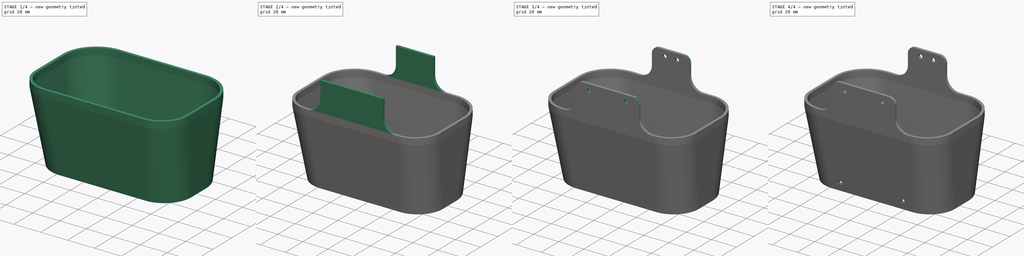
[diagram: build sequence overview — one tinted view per stage of 4, left to right]
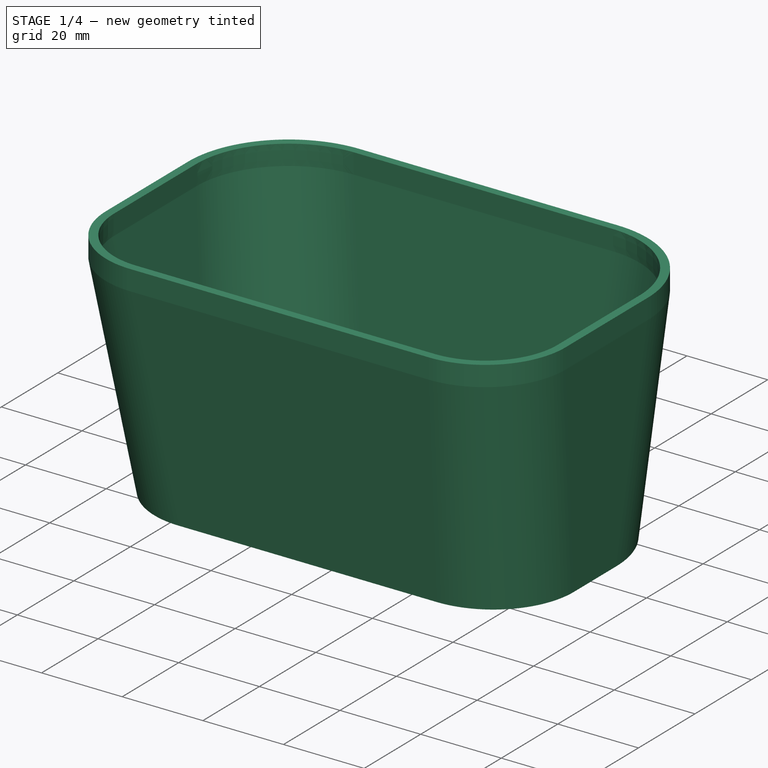
[diagram: stage 1 of 4 — iso view after this stage's code; geometry added in this stage tinted green]
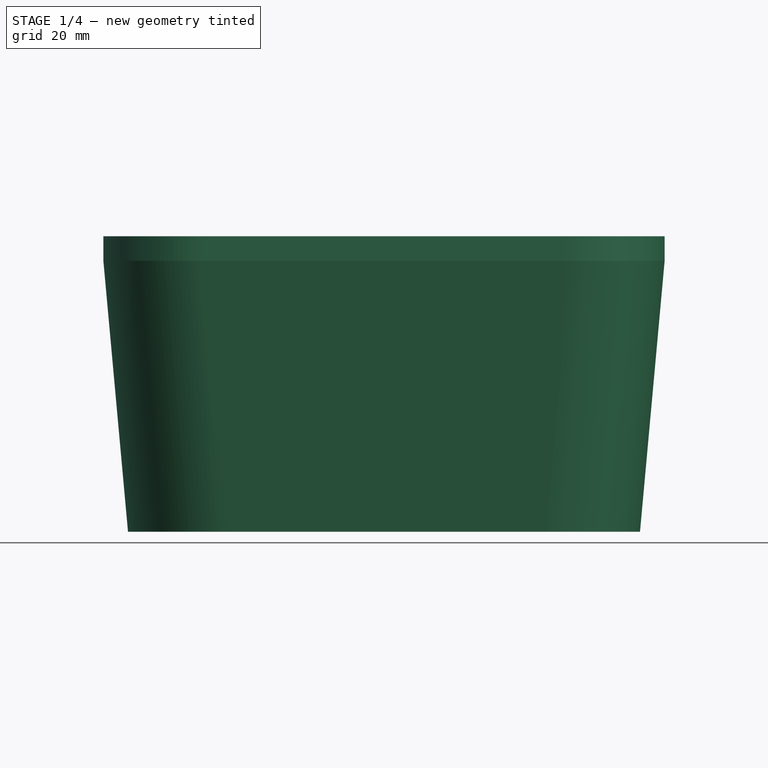
[diagram: stage 1 of 4 — front view after this stage's code; geometry added in this stage tinted green]
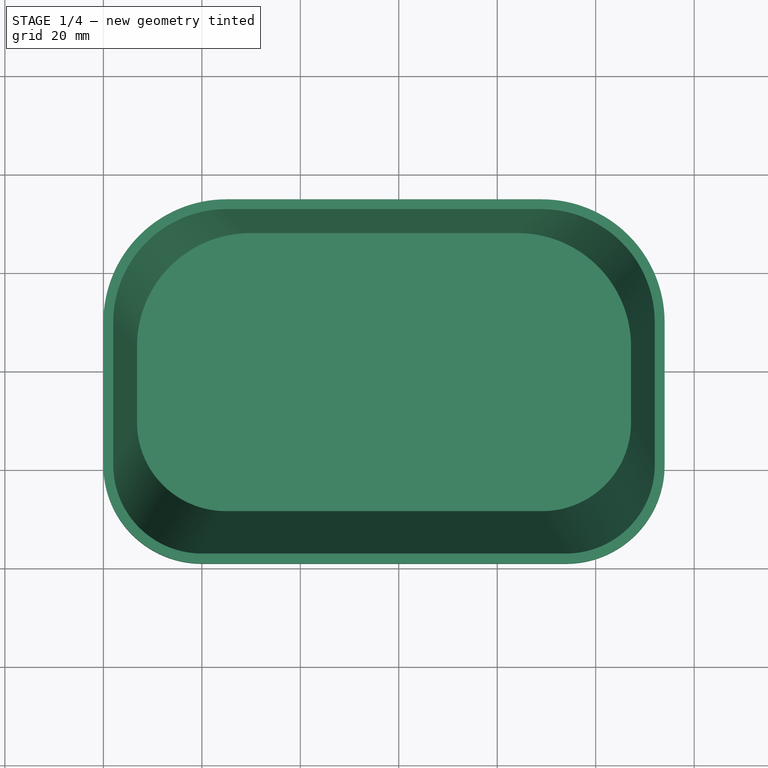
[diagram: stage 1 of 4 — top view after this stage's code; geometry added in this stage tinted green]
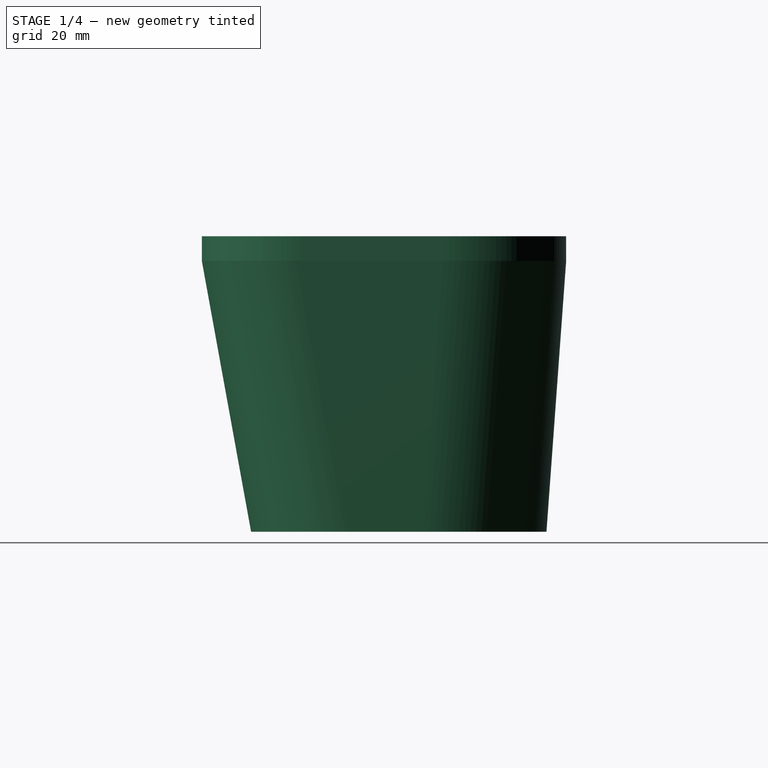
[diagram: stage 1 of 4 — right view after this stage's code; geometry added in this stage tinted green]
FCSTD DOCUMENT  (FreeCAD 0.19R22894 (Git))
Label: Rear_Cover_Shell_Long
License: CreativeCommons Attribution-NonCommercial
LicenseURL: http://creativecommons.org/licenses/by-nc/4.0/
objects: Sketcher::SketchObject×8, PartDesign::Pocket×7, PartDesign::Pad×2, PartDesign::AdditiveLoft×1, PartDesign::Thickness×1, PartDesign::Fillet×1, PartDesign::Body×1
note: 33 computed .brp shape members not serialized (recipe doc carries the construction recipe); baked Part::Feature solids carry a one-line shape summary decoded from their .brp

FEATURE [Sketcher::SketchObject] Sketch250
  MapMode = 5
  Support = -> [XY_Plane097]
  sketch-geometry (8):
    g0: LineSegment StartX=25 StartY=10 StartZ=0 EndX=89 EndY=10 EndZ=0
    g1: LineSegment StartX=109 StartY=30 StartZ=0 EndX=109 EndY=45 EndZ=0
    g2: LineSegment StartX=84 StartY=70 StartZ=0 EndX=30 EndY=70 EndZ=0
    g3: LineSegment StartX=5 StartY=45 StartZ=0 EndX=5 EndY=30 EndZ=0
    g4: ArcOfCircle CenterX=30 CenterY=45 CenterZ=0 NormalX=0 NormalY=0 NormalZ=1 AngleXU=0 Radius=25 StartAngle=1.5708 EndAngle=3.14159
    g5: ArcOfCircle CenterX=84 CenterY=45 CenterZ=0 NormalX=0 NormalY=0 NormalZ=1 AngleXU=0 Radius=25 StartAngle=0 EndAngle=1.5708
    g6: ArcOfCircle CenterX=89 CenterY=30 CenterZ=0 NormalX=0 NormalY=0 NormalZ=1 AngleXU=0 Radius=20 StartAngle=4.71239 EndAngle=6.28319
    g7: ArcOfCircle CenterX=25 CenterY=30 CenterZ=0 NormalX=0 NormalY=0 NormalZ=1 AngleXU=0 Radius=20 StartAngle=3.14159 EndAngle=4.71239
  constraints (20):
    c: Horizontal(g0)
    c: Horizontal(g2)
    c: Vertical(g1)
    c: Vertical(g3)
    c: Tangent(g3,g4) = -1.5708
    c: Tangent(g2,g4) = -1.5708
    c: Tangent(g2,g5) = -1.5708
    c: Tangent(g1,g5) = -1.5708
    c: Tangent(g1,g6) = -1.5708
    c: Tangent(g0,g6) = -1.5708
    c: Tangent(g0,g7) = -1.5708
    c: Tangent(g3,g7) = -1.5708
    c: Equal(g4,g5)
    c: Equal(g7,g6)
    c: Radius(g5) = 25
    c: Radius(g6) = 20
    c: DistanceY(g0,g2) = 60
    c: DistanceX(g3,g1) = 104
    c: DistanceY(g-1,g0) = 10
    c: DistanceX(g-1,g3) = 5
FEATURE [Sketcher::SketchObject] Sketch248
  AttachmentOffset = pos=(0,0,55) rot=(0,0,1;0rad)
  MapMode = 5
  Placement = pos=(0,0,55) rot=(0,0,1;0rad)
  Support = -> [XY_Plane097]
  sketch-geometry (8):
    g0: LineSegment StartX=25 StartY=74 StartZ=0 EndX=89 EndY=74 EndZ=0
    g1: LineSegment StartX=114 StartY=49 StartZ=0 EndX=114 EndY=20 EndZ=0
    g2: LineSegment StartX=94 StartY=0 StartZ=0 EndX=20 EndY=0 EndZ=0
    g3: LineSegment StartX=0 StartY=20 StartZ=0 EndX=0 EndY=49 EndZ=0
    g4: ArcOfCircle CenterX=20 CenterY=20 CenterZ=0 NormalX=0 NormalY=0 NormalZ=1 AngleXU=0 Radius=20 StartAngle=3.14159 EndAngle=4.71239
    g5: ArcOfCircle CenterX=25 CenterY=49 CenterZ=0 NormalX=0 NormalY=0 NormalZ=1 AngleXU=0 Radius=25 StartAngle=1.5708 EndAngle=3.14159
    g6: ArcOfCircle CenterX=89 CenterY=49 CenterZ=0 NormalX=0 NormalY=0 NormalZ=1 AngleXU=0 Radius=25 StartAngle=0 EndAngle=1.5708
    g7: ArcOfCircle CenterX=94 CenterY=20 CenterZ=0 NormalX=0 NormalY=0 NormalZ=1 AngleXU=0 Radius=20 StartAngle=4.71239 EndAngle=6.28319
  constraints (20):
    c: Horizontal(g0)
    c: Horizontal(g2)
    c: Vertical(g1)
    c: Vertical(g3)
    c: Tangent(g2,g4) = 1.5708
    c: Tangent(g3,g4) = 1.5708
    c: Tangent(g3,g5) = 1.5708
    c: Tangent(g0,g5) = 1.5708
    c: Tangent(g0,g6) = 1.5708
    c: Tangent(g1,g6) = 1.5708
    c: Tangent(g1,g7) = 1.5708
    c: Tangent(g2,g7) = 1.5708
    c: Equal(g4,g7)
    c: Equal(g5,g6)
    c: Radius(g6) = 25
    c: Radius(g7) = 20
    c: PointOnObject(g2,g-1)
    c: PointOnObject(g3,g-2)
    c: DistanceX(g3,g1) = 114
    c: DistanceY(g2,g0) = 74
FEATURE [PartDesign::AdditiveLoft] AdditiveLoft004  label="Baseplate"
  AllowMultiFace = false
  Closed = false
  Profile = -> Sketch250
  Ruled = false
  Sections = -> [Sketch248]
FEATURE [PartDesign::Thickness] Thickness004  label="Make Shell"
  Base = -> AdditiveLoft004 [Face3]
  BaseFeature = -> AdditiveLoft004
  Intersection = false
  Join = 0
  Mode = 0
  Reversed = true
  SupportTransform = false
  Value = 2
FEATURE [PartDesign::Pad] Pad108  label="Connection Ring"
  AllowMultiFace = false
  BaseFeature = -> Thickness004
  Direction = (1,1,1)
  Length = 5
  Length2 = 100
  Profile = -> Thickness004 [Face10]
  Type = 0
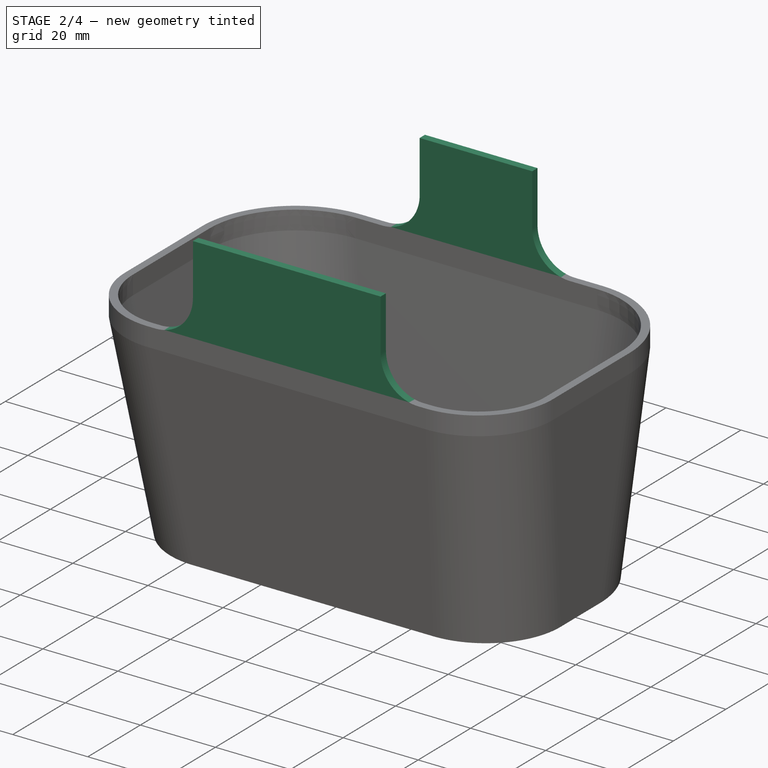
[diagram: stage 2 of 4 — iso view after this stage's code; geometry added in this stage tinted green]
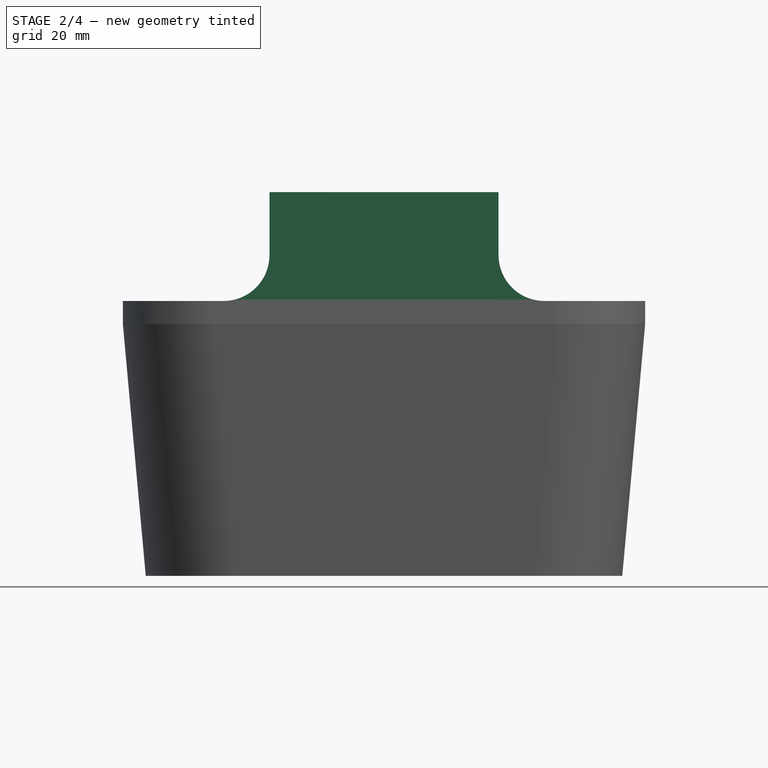
[diagram: stage 2 of 4 — front view after this stage's code; geometry added in this stage tinted green]
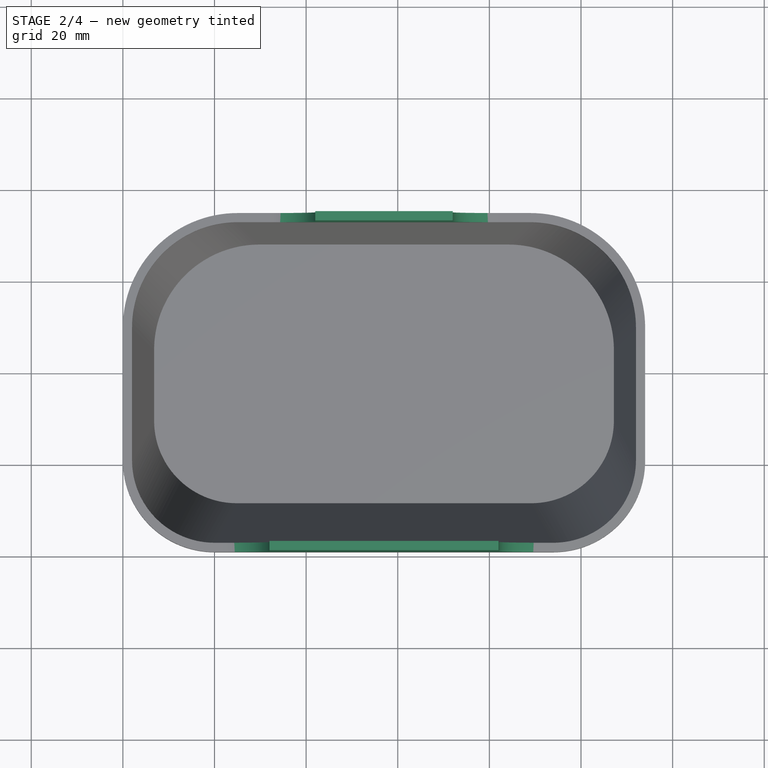
[diagram: stage 2 of 4 — top view after this stage's code; geometry added in this stage tinted green]
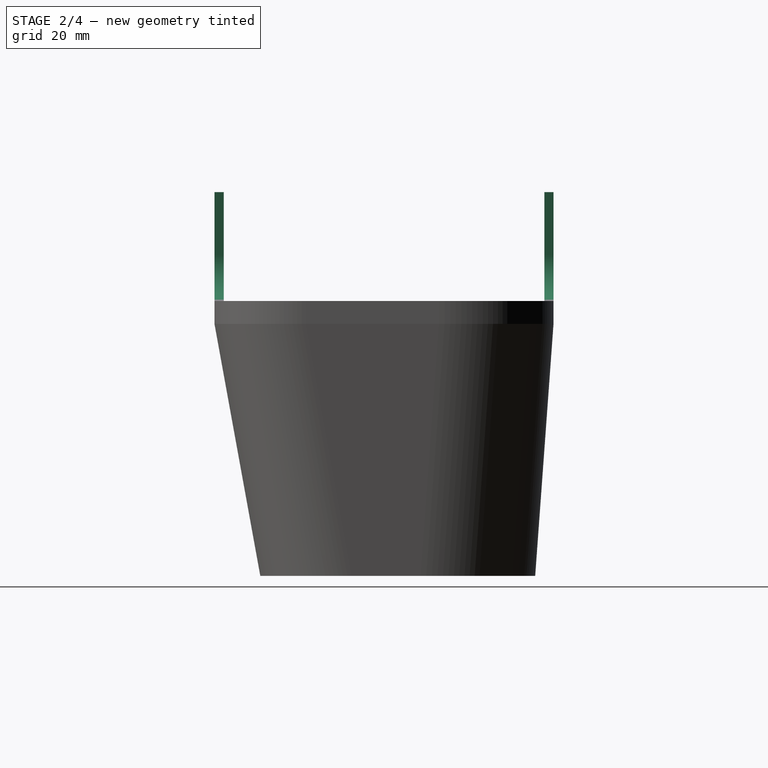
[diagram: stage 2 of 4 — right view after this stage's code; geometry added in this stage tinted green]
FEATURE [PartDesign::Pad] Pad111  label="Mounting Lip"
  AllowMultiFace = false
  BaseFeature = -> Pad108
  Direction = (1,1,1)
  Length = 23.75
  Length2 = 100
  Profile = -> Pad108 [Face18]
  Type = 0
FEATURE [Sketcher::SketchObject] Sketch253
  MapMode = 5
  Placement = pos=(0,0,0) rot=(1,0,0;1.5708rad)
  Support = -> [Pad111]
  sketch-geometry (10):
    g0: LineSegment StartX=0 StartY=83.75 StartZ=0 EndX=32 EndY=83.75 EndZ=0
    g1: LineSegment StartX=32 StartY=83.75 StartZ=0 EndX=32 EndY=70 EndZ=0
    g2: LineSegment StartX=22 StartY=60 StartZ=0 EndX=0 EndY=60 EndZ=0
    g3: LineSegment StartX=0 StartY=60 StartZ=0 EndX=0 EndY=83.75 EndZ=0
    g4: LineSegment StartX=114 StartY=83.75 StartZ=0 EndX=82 EndY=83.75 EndZ=0
    g5: LineSegment StartX=82 StartY=83.75 StartZ=0 EndX=82 EndY=70 EndZ=0
    g6: LineSegment StartX=92 StartY=60 StartZ=0 EndX=114 EndY=60 EndZ=0
    g7: LineSegment StartX=114 StartY=60 StartZ=0 EndX=114 EndY=83.75 EndZ=0
    g8: ArcOfCircle CenterX=22 CenterY=70 CenterZ=0 NormalX=0 NormalY=0 NormalZ=1 AngleXU=0 Radius=10 StartAngle=4.71239 EndAngle=6.28319
    g9: ArcOfCircle CenterX=92 CenterY=70 CenterZ=0 NormalX=0 NormalY=0 NormalZ=1 AngleXU=0 Radius=10 StartAngle=3.14159 EndAngle=4.71239
  constraints (28):
    c: Coincident(g0,g1)
    c: Coincident(g2,g3)
    c: Coincident(g3,g0)
    c: Horizontal(g0)
    c: Horizontal(g2)
    c: Vertical(g1)
    c: Vertical(g3)
    c: PointOnObject(g0,g-2)
    c: Coincident(g4,g5)
    c: Coincident(g6,g7)
    c: Coincident(g7,g4)
    c: Horizontal(g4)
    c: Horizontal(g6)
    c: Vertical(g5)
    c: Vertical(g7)
    c: DistanceX(g0,g4) = 50
    c: Tangent(g2,g8) = 1.5708
    c: Tangent(g1,g8) = 1.5708
    c: Tangent(g6,g9) = -1.5708
    c: Tangent(g5,g9) = -1.5708
    c: Equal(g8,g9)
    c: Radius(g8) = 10
    c: Equal(g0,g4)
    c: DistanceX(g0,g4) = 114
    c: DistanceY(g-1,g0) = 83.75
    c: Horizontal(g4,g0)
    c: Equal(g5,g1)
    c: DistanceY(g3,g3) = 23.75
FEATURE [PartDesign::Pocket] Pocket109  label="Remove Upper Shell"
  AllowMultiFace = false
  BaseFeature = -> Pad111
  Length = 40
  Length2 = 100
  Profile = -> Sketch253
  Type = 0
FEATURE [Sketcher::SketchObject] Sketch207
  MapMode = 5
  Placement = pos=(0,74,0) rot=(0,0.707107,0.707107;3.14159rad)
  Support = -> [Pocket109]
  sketch-geometry (10):
    g0: LineSegment StartX=-114 StartY=83.75 StartZ=0 EndX=-72 EndY=83.75 EndZ=0
    g1: LineSegment StartX=-72 StartY=83.75 StartZ=0 EndX=-72 EndY=70 EndZ=0
    g2: LineSegment StartX=-82 StartY=60 StartZ=0 EndX=-114 EndY=60 EndZ=0
    g3: LineSegment StartX=-114 StartY=60 StartZ=0 EndX=-114 EndY=83.75 EndZ=0
    g4: LineSegment StartX=0 StartY=83.75 StartZ=0 EndX=-42 EndY=83.75 EndZ=0
    g5: LineSegment StartX=-42 StartY=83.75 StartZ=0 EndX=-42 EndY=70 EndZ=0
    g6: LineSegment StartX=-32 StartY=60 StartZ=0 EndX=0 EndY=60 EndZ=0
    g7: LineSegment StartX=0 StartY=60 StartZ=0 EndX=0 EndY=83.75 EndZ=0
    g8: ArcOfCircle CenterX=-82 CenterY=70 CenterZ=0 NormalX=0 NormalY=0 NormalZ=1 AngleXU=0 Radius=10 StartAngle=4.71239 EndAngle=6.28319
    g9: ArcOfCircle CenterX=-32 CenterY=70 CenterZ=0 NormalX=0 NormalY=0 NormalZ=1 AngleXU=0 Radius=10 StartAngle=3.14159 EndAngle=4.71239
  constraints (28):
    c: Coincident(g0,g1)
    c: Coincident(g2,g3)
    c: Coincident(g3,g0)
    c: Horizontal(g0)
    c: Horizontal(g2)
    c: Vertical(g1)
    c: Vertical(g3)
    c: Coincident(g4,g5)
    c: Coincident(g6,g7)
    c: Coincident(g7,g4)
    c: Horizontal(g4)
    c: Horizontal(g6)
    c: Vertical(g5)
    c: Vertical(g7)
    c: PointOnObject(g4,g-2)
    c: DistanceX(g0,g4) = 30
    c: Tangent(g2,g8) = 1.5708
    c: Tangent(g1,g8) = 1.5708
    c: Tangent(g5,g9) = -1.5708
    c: Tangent(g6,g9) = -1.5708
    c: Equal(g9,g8)
    c: Radius(g9) = 10
    c: Horizontal(g4,g0)
    c: Equal(g1,g5)
    c: Equal(g4,g0)
    c: DistanceX(g0,g4) = 114
    c: DistanceY(g-1,g4) = 83.75
    c: DistanceY(g7,g7) = 23.75
FEATURE [PartDesign::Pocket] Pocket110  label="Remove Bottom Shell"
  AllowMultiFace = false
  BaseFeature = -> Pocket109
  Length = 40
  Length2 = 100
  Profile = -> Sketch207
  Type = 0
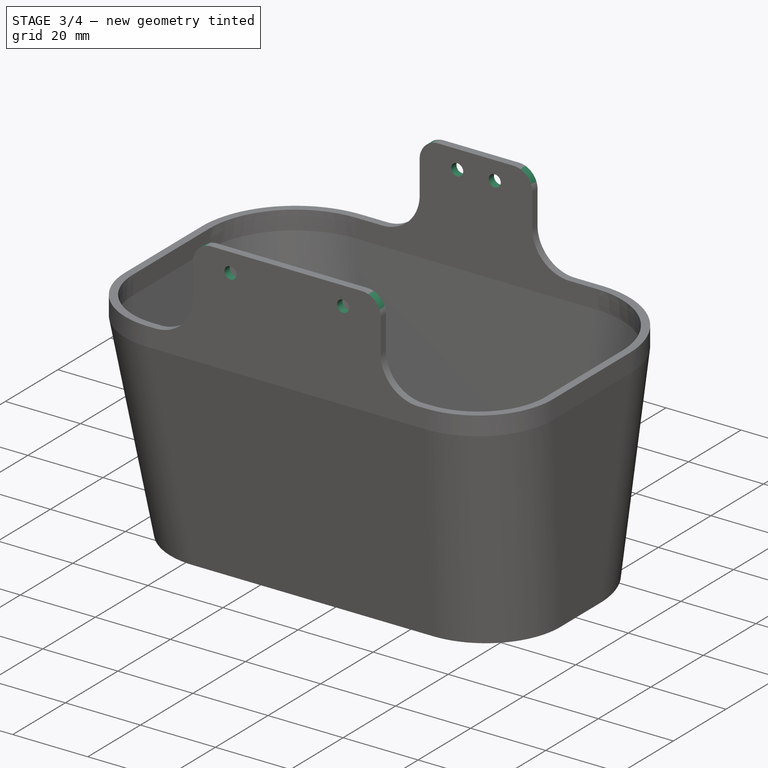
[diagram: stage 3 of 4 — iso view after this stage's code; geometry added in this stage tinted green]
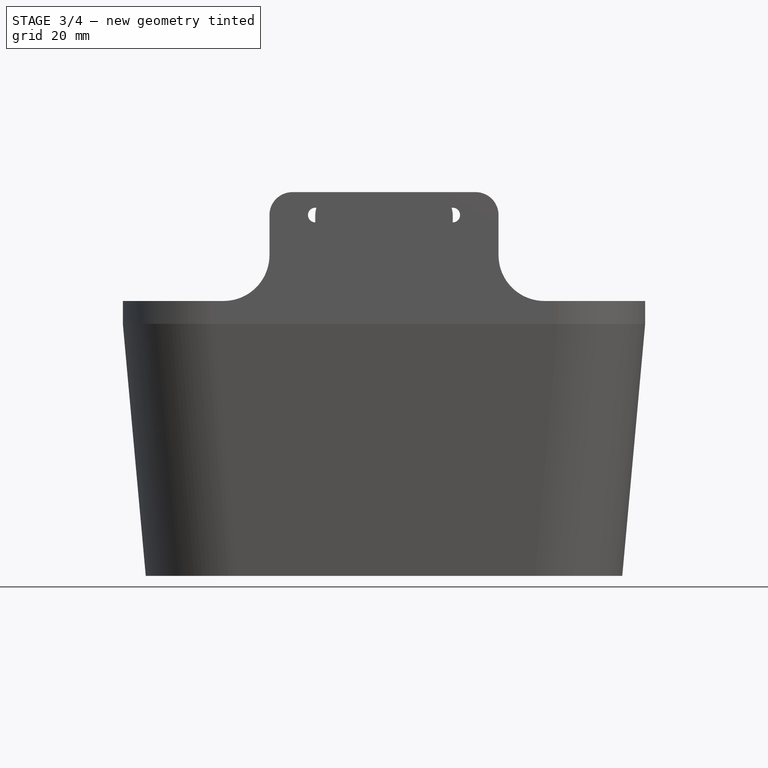
[diagram: stage 3 of 4 — front view after this stage's code; geometry added in this stage tinted green]
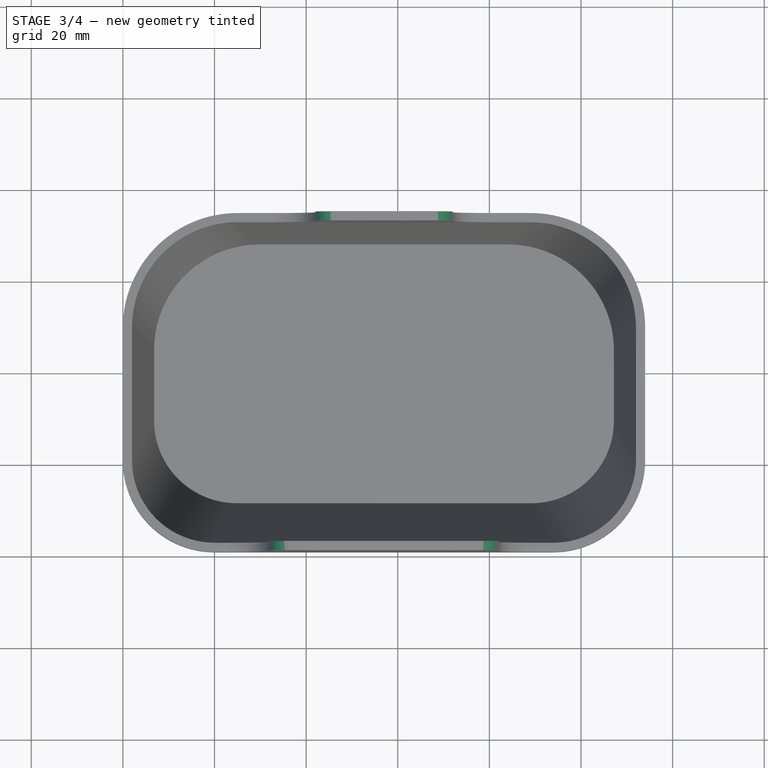
[diagram: stage 3 of 4 — top view after this stage's code; geometry added in this stage tinted green]
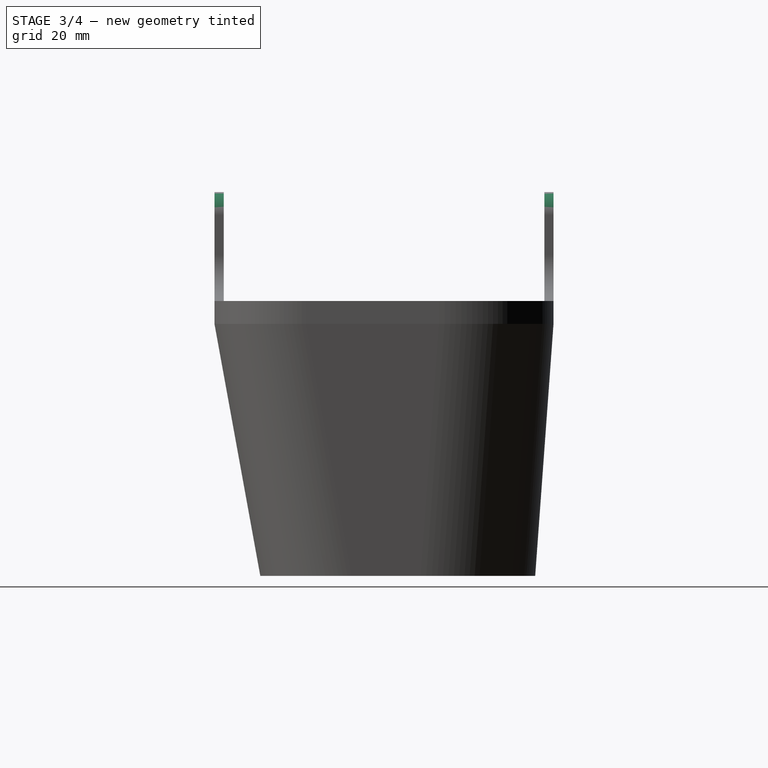
[diagram: stage 3 of 4 — right view after this stage's code; geometry added in this stage tinted green]
FEATURE [PartDesign::Fillet] Fillet024  label="Round Shell Corners"
  Base = -> Pocket110 [Edge94,Edge114,Edge113,Edge95]
  BaseFeature = -> Pocket110
  Radius = 5
  SupportTransform = false
FEATURE [Sketcher::SketchObject] Sketch249
  MapMode = 5
  Placement = pos=(0,74,0) rot=(0,0.707107,0.707107;3.14159rad)
  Support = -> [Fillet024]
  sketch-geometry (2):
    g0: Circle CenterX=-62 CenterY=78.75 CenterZ=0 NormalX=0 NormalY=0 NormalZ=1 AngleXU=0 Radius=1.6
    g1: Circle CenterX=-52 CenterY=78.75 CenterZ=0 NormalX=0 NormalY=0 NormalZ=1 AngleXU=0 Radius=1.6
  constraints (6):
    c: DistanceX(g0,g1) = 10
    c: Horizontal(g0,g1)
    c: DistanceY(g-1,g1) = 78.75
    c: DistanceX(g1,g-1) = 52
    c: Equal(g1,g0)
    c: Radius(g1) = 1.6
FEATURE [PartDesign::Pocket] Pocket113  label="Bottom Screwholes"
  AllowMultiFace = false
  BaseFeature = -> Fillet024
  Length = 5
  Length2 = 100
  Profile = -> Sketch249
  Type = 0
FEATURE [Sketcher::SketchObject] Sketch247
  MapMode = 5
  Placement = pos=(0,0,0) rot=(1,0,0;1.5708rad)
  Support = -> [Pocket113]
  sketch-geometry (2):
    g0: Circle CenterX=42 CenterY=78.75 CenterZ=0 NormalX=0 NormalY=0 NormalZ=1 AngleXU=0 Radius=1.6
    g1: Circle CenterX=72 CenterY=78.75 CenterZ=0 NormalX=0 NormalY=0 NormalZ=1 AngleXU=0 Radius=1.6
  constraints (6):
    c: DistanceX(g0,g1) = 30
    c: Horizontal(g1,g0)
    c: Equal(g0,g1)
    c: Radius(g1) = 1.6
    c: DistanceY(g-1,g0) = 78.75
    c: DistanceX(g-1,g0) = 42
FEATURE [PartDesign::Pocket] Pocket114  label="Top Screwholes"
  AllowMultiFace = false
  BaseFeature = -> Pocket113
  Length = 5
  Length2 = 100
  Profile = -> Sketch247
  Type = 0
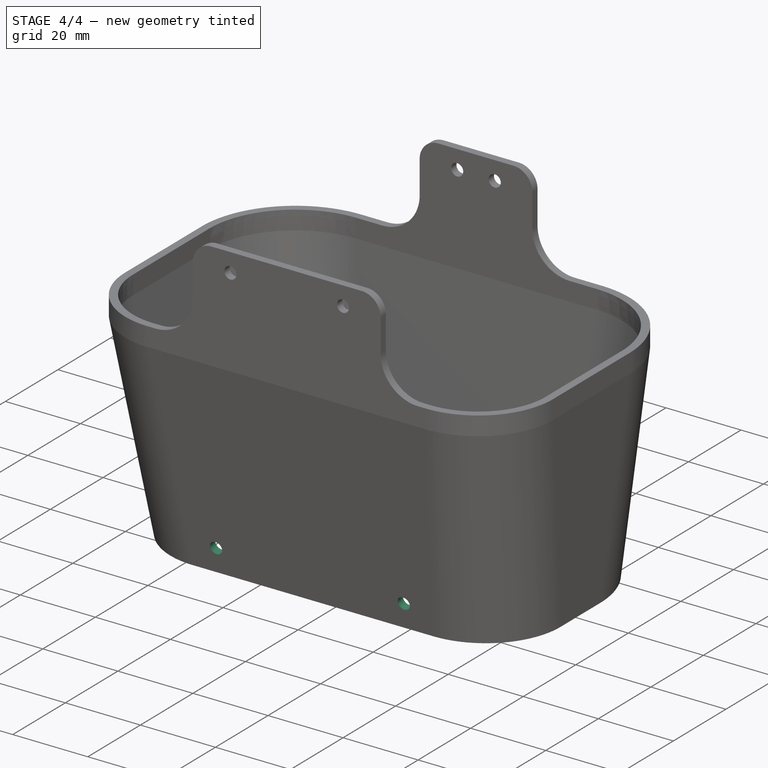
[diagram: stage 4 of 4 — iso view after this stage's code; geometry added in this stage tinted green]
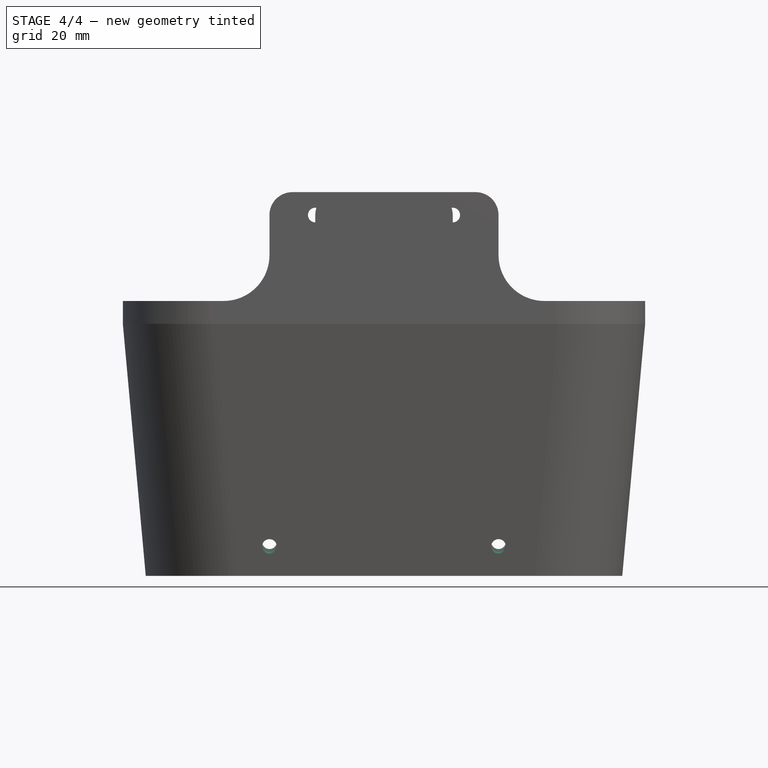
[diagram: stage 4 of 4 — front view after this stage's code; geometry added in this stage tinted green]
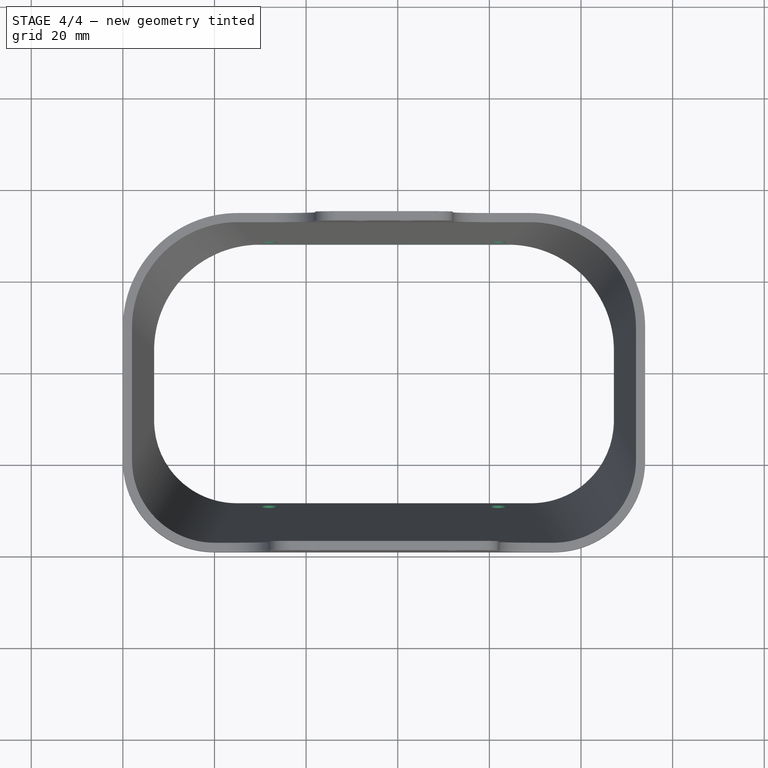
[diagram: stage 4 of 4 — top view after this stage's code; geometry added in this stage tinted green]
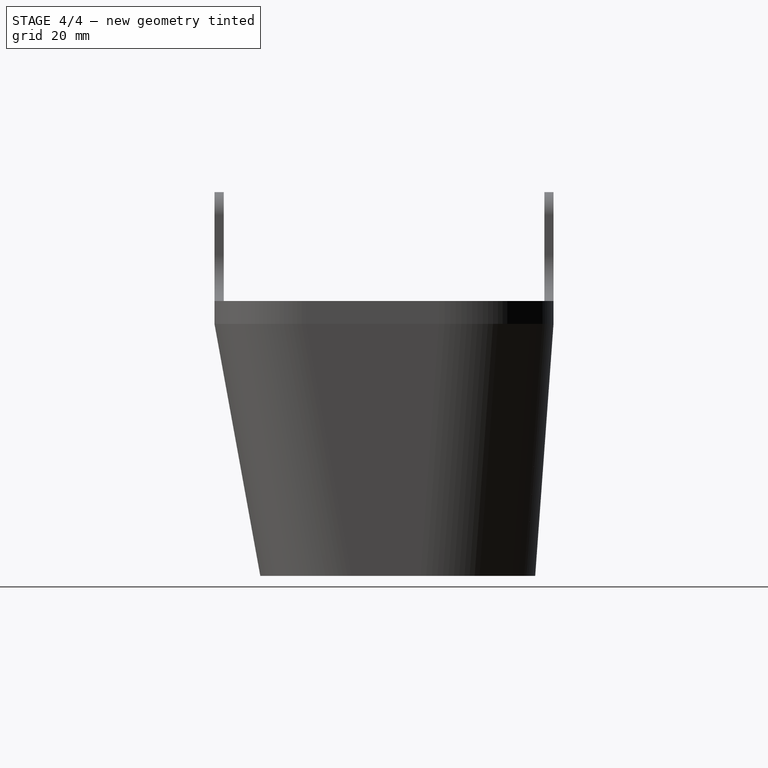
[diagram: stage 4 of 4 — right view after this stage's code; geometry added in this stage tinted green]
FEATURE [PartDesign::Pocket] Pocket081  label="Remove Bottom Plate"
  AllowMultiFace = false
  BaseFeature = -> Pocket114
  Length = 5
  Length2 = 100
  Profile = -> Pocket114 [Face46]
  Type = 0
FEATURE [Sketcher::SketchObject] Sketch225
  MapMode = 5
  Placement = pos=(0,9.68,1.76) rot=(1,0,0;1.75065rad)
  Support = -> [Pocket081]
  sketch-geometry (2):
    g0: Circle CenterX=32 CenterY=4.75 CenterZ=0 NormalX=0 NormalY=0 NormalZ=1 AngleXU=0 Radius=1.6
    g1: Circle CenterX=82 CenterY=4.75 CenterZ=0 NormalX=0 NormalY=0 NormalZ=1 AngleXU=0 Radius=1.6
  constraints (6):
    c: DistanceX(g0,g1) = 50
    c: Radius(g0) = 1.6
    c: Equal(g0,g1)
    c: Horizontal(g0,g1)
    c: DistanceY(g-1,g0) = 4.75
    c: DistanceX(g-1,g0) = 32
FEATURE [PartDesign::Pocket] Pocket082  label="Plate Top Screwholes"
  AllowMultiFace = false
  BaseFeature = -> Pocket081
  Length = 5
  Length2 = 100
  Profile = -> Sketch225
  Type = 0
FEATURE [Sketcher::SketchObject] Sketch224
  MapMode = 5
  Placement = pos=(-1e-16,69.6317,-5.06412) rot=(0,0.732303,0.680979;3.14159rad)
  Support = -> [Pocket082]
  sketch-geometry (2):
    g0: Circle CenterX=-82 CenterY=12.4 CenterZ=0 NormalX=0 NormalY=0 NormalZ=1 AngleXU=0 Radius=1.6
    g1: Circle CenterX=-32 CenterY=12.4 CenterZ=0 NormalX=0 NormalY=0 NormalZ=1 AngleXU=0 Radius=1.6
  constraints (6):
    c: DistanceX(g0,g1) = 50
    c: Radius(g1) = 1.6
    c: Equal(g1,g0)
    c: DistanceX(g1,g-1) = 32
    c: Horizontal(g1,g0)
    c: DistanceY(g-1,g1) = 12.4
FEATURE [PartDesign::Pocket] Pocket083  label="Plate Bottom Screwholes"
  AllowMultiFace = false
  BaseFeature = -> Pocket082
  Length = 5
  Length2 = 100
  Profile = -> Sketch224
  Type = 0
FEATURE [PartDesign::Body] Body082  label="Rear_Cover_Shell_long"
  Group = -> [Sketch248,Sketch250,AdditiveLoft004,Thickness004,Pad108,Pad111,Sketch253,Pocket109,Sketch207,Pocket110,Fillet024,Sketch249,Pocket113,Sketch247,Pocket114,Pocket081,Sketch225,Pocket082,Sketch224,Pocket083]
  Origin = -> Origin127
  Tip = -> Pocket083
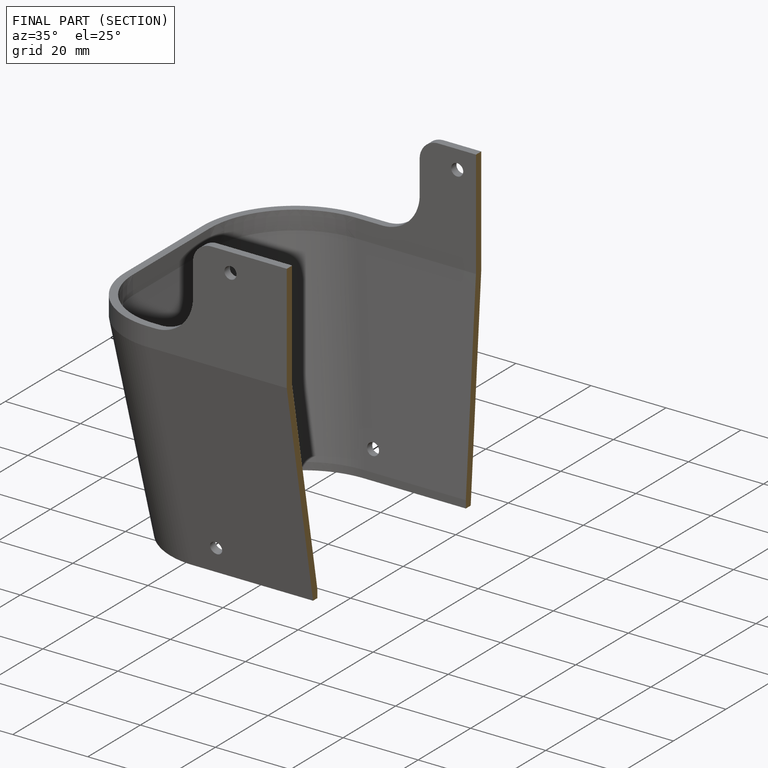
[diagram: finished part — half-section view (interior)]
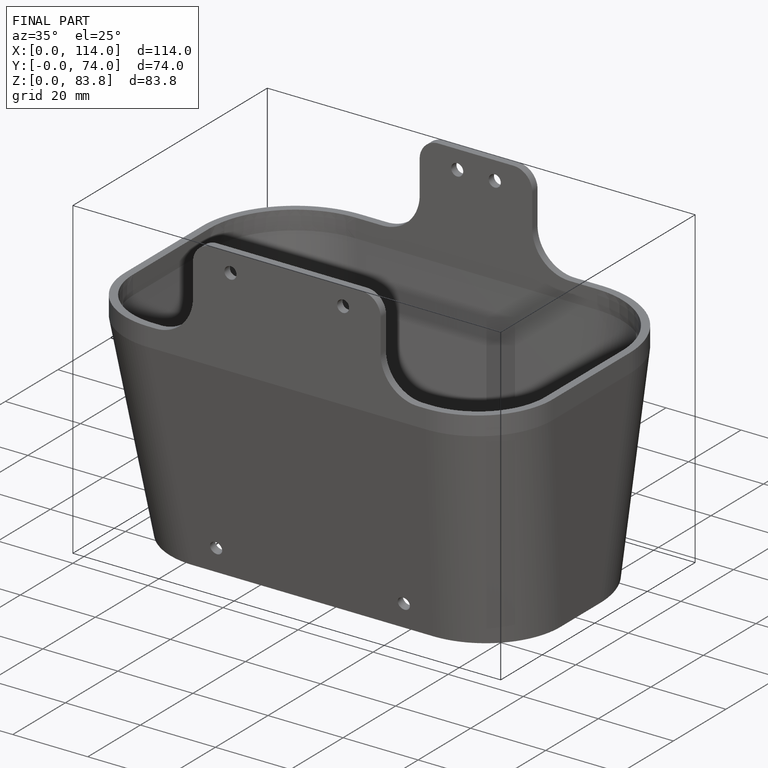
[diagram: finished part — iso view with bounding-box wireframe]
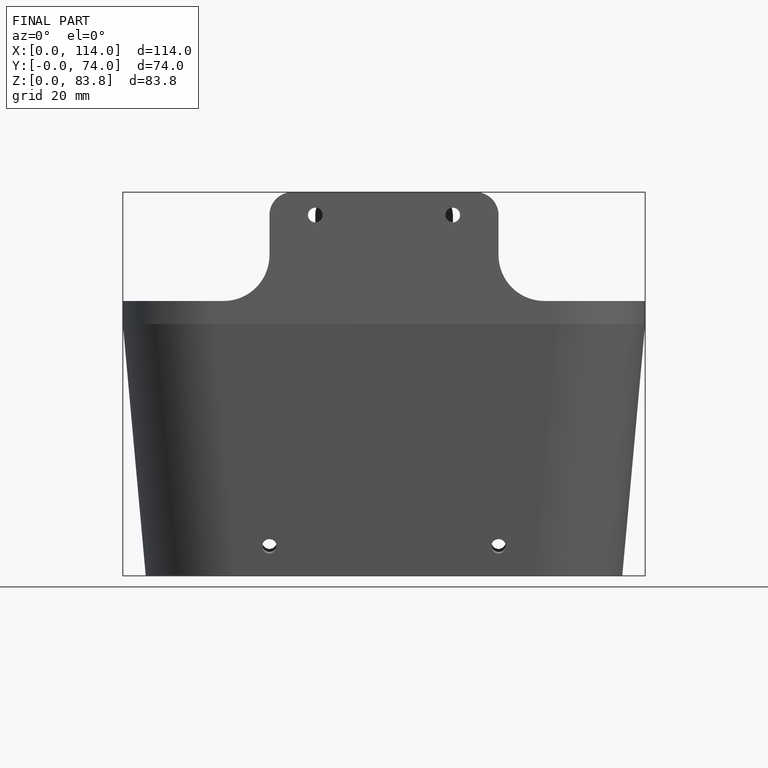
[diagram: finished part — front view with bounding-box wireframe]
